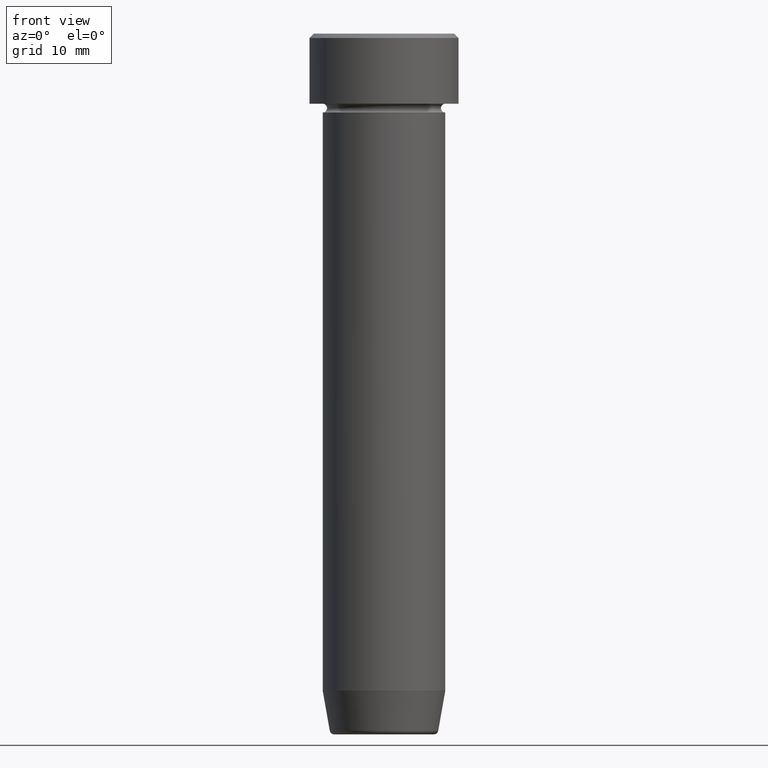
[diagram: clean part render]
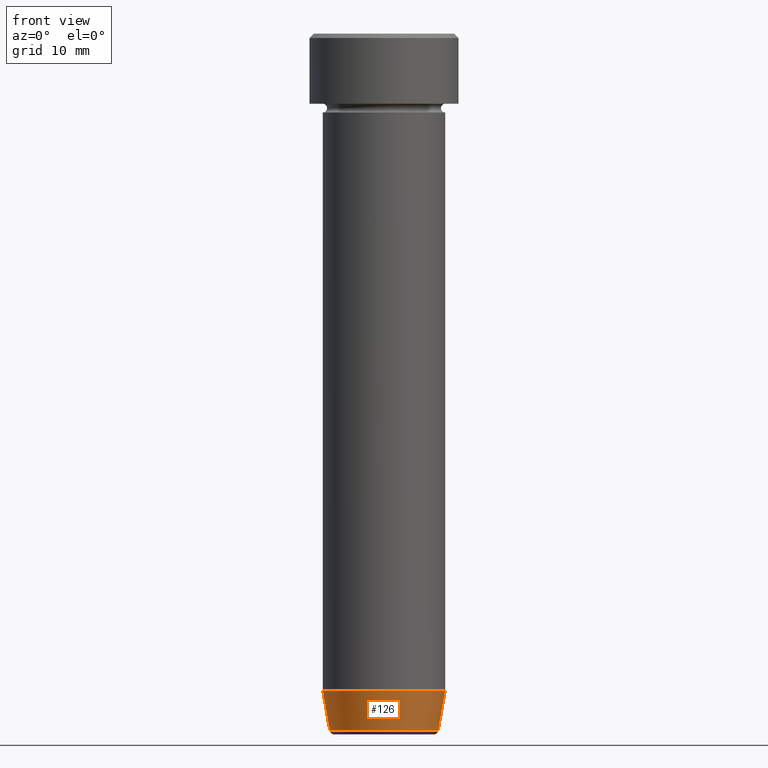
[diagram: same view with one face highlighted and labeled with its STEP entity id]
A machine part, front view. The second image highlights one B-rep face of the part: STEP entity #126.
In plain terms, the highlighted conical surface has half-angle 10 deg.
Its self-contained STEP definition (entity closure, byte-faithful):
#11 = CARTESIAN_POINT ( 'NONE',  ( 0.000000000000000000, 0.000000000000000000, -75.00000000000000000 ) ) ;
#24 = CARTESIAN_POINT ( 'NONE',  ( -6.999999999999999112, 8.572527594031472204E-16, -75.00000000000000000 ) ) ;
#30 = VECTOR ( 'NONE', #508, 999.9999999999998863 ) ;
#40 = CARTESIAN_POINT ( 'NONE',  ( 0.000000000000000000, 0.000000000000000000, -79.58682408883346682 ) ) ;
#58 = EDGE_LOOP ( 'NONE', ( #454, #328, #171, #111 ) ) ;
#68 = LINE ( 'NONE', #353, #112 ) ;
#83 = CIRCLE ( 'NONE', #562, 6.999999999999999112 ) ;
#109 = VERTEX_POINT ( 'NONE', #479 ) ;
#111 = ORIENTED_EDGE ( 'NONE', *, *, #327, .F. ) ;
#112 = VECTOR ( 'NONE', #155, 999.9999999999998863 ) ;
#126 = ADVANCED_FACE ( 'NONE', ( #316 ), #583, .T. ) ;
#127 = LINE ( 'NONE', #234, #30 ) ;
#154 = VERTEX_POINT ( 'NONE', #24 ) ;
#155 = DIRECTION ( 'NONE',  ( -0.1736481776669298038, 2.126576849575764827E-17, 0.9848077530122082424 ) ) ;
#157 = DIRECTION ( 'NONE',  ( 1.000000000000000000, 0.000000000000000000, 0.000000000000000000 ) ) ;
#171 = ORIENTED_EDGE ( 'NONE', *, *, #379, .T. ) ;
#177 = AXIS2_PLACEMENT_3D ( 'NONE', #389, #592, #157 ) ;
#234 = CARTESIAN_POINT ( 'NONE',  ( 6.118365096457673680, 0.000000000000000000, -80.00000000000001421 ) ) ;
#275 = EDGE_CURVE ( 'NONE', #109, #298, #356, .T. ) ;
#289 = DIRECTION ( 'NONE',  ( 1.000000000000000000, 0.000000000000000000, 0.000000000000000000 ) ) ;
#298 = VERTEX_POINT ( 'NONE', #518 ) ;
#316 = FACE_OUTER_BOUND ( 'NONE', #58, .T. ) ;
#327 = EDGE_CURVE ( 'NONE', #154, #488, #83, .T. ) ;
#328 = ORIENTED_EDGE ( 'NONE', *, *, #275, .T. ) ;
#353 = CARTESIAN_POINT ( 'NONE',  ( -6.118365096457673680, 7.492836231391777609E-16, -80.00000000000001421 ) ) ;
#356 = CIRCLE ( 'NONE', #512, 6.191219157375138948 ) ;
#379 = EDGE_CURVE ( 'NONE', #298, #488, #127, .T. ) ;
#389 = CARTESIAN_POINT ( 'NONE',  ( 0.000000000000000000, 0.000000000000000000, -80.00000000000001421 ) ) ;
#400 = DIRECTION ( 'NONE',  ( -0.000000000000000000, -0.000000000000000000, 1.000000000000000000 ) ) ;
#454 = ORIENTED_EDGE ( 'NONE', *, *, #489, .F. ) ;
#479 = CARTESIAN_POINT ( 'NONE',  ( -6.191219157375138948, 8.077292158965354448E-16, -79.58682408883346682 ) ) ;
#488 = VERTEX_POINT ( 'NONE', #535 ) ;
#489 = EDGE_CURVE ( 'NONE', #109, #154, #68, .T. ) ;
#508 = DIRECTION ( 'NONE',  ( 0.1736481776669298038, 0.000000000000000000, 0.9848077530122082424 ) ) ;
#512 = AXIS2_PLACEMENT_3D ( 'NONE', #40, #400, #599 ) ;
#518 = CARTESIAN_POINT ( 'NONE',  ( 6.191219157375138948, 0.000000000000000000, -79.58682408883346682 ) ) ;
#535 = CARTESIAN_POINT ( 'NONE',  ( 6.999999999999999112, 0.000000000000000000, -75.00000000000000000 ) ) ;
#562 = AXIS2_PLACEMENT_3D ( 'NONE', #11, #566, #289 ) ;
#566 = DIRECTION ( 'NONE',  ( -0.000000000000000000, -0.000000000000000000, 1.000000000000000000 ) ) ;
#583 = CONICAL_SURFACE ( 'NONE', #177, 6.118365096457673680, 0.1745329251994324482 ) ;
#592 = DIRECTION ( 'NONE',  ( -0.000000000000000000, -0.000000000000000000, 1.000000000000000000 ) ) ;
#599 = DIRECTION ( 'NONE',  ( -1.000000000000000000, 0.000000000000000000, 0.000000000000000000 ) ) ;